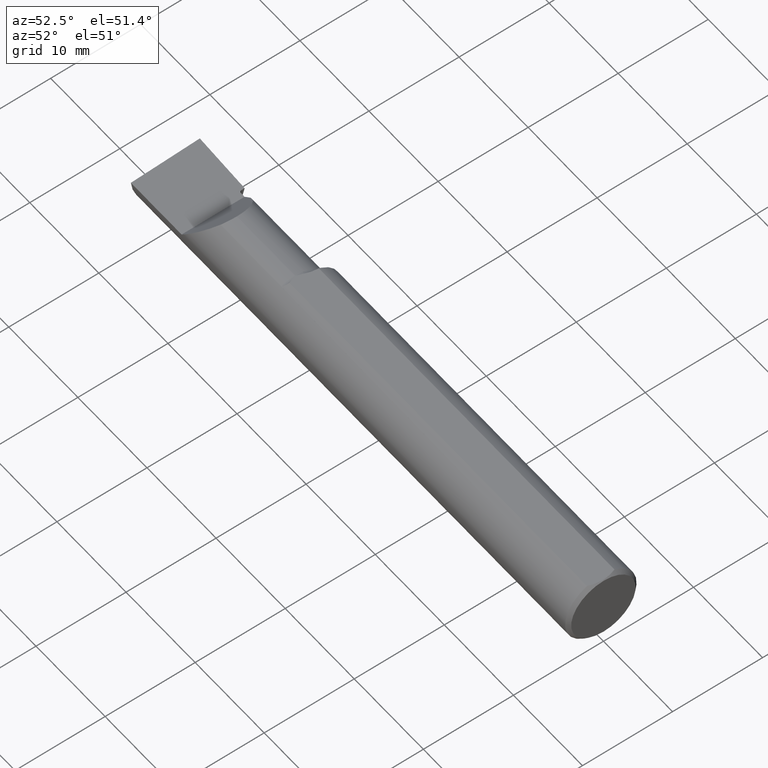
[diagram: clean part render]
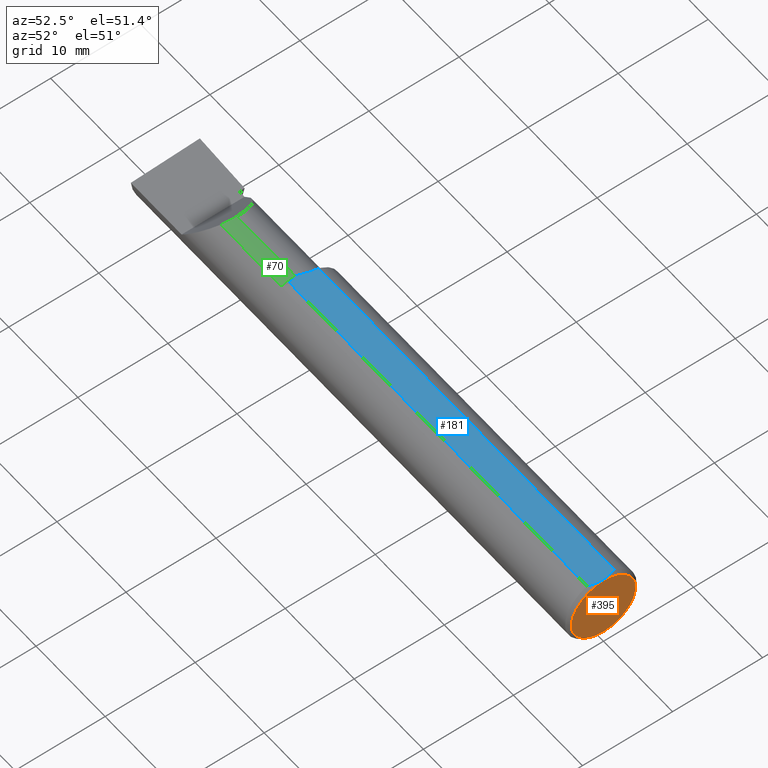
[diagram: same view with three faces highlighted in distinct colors, each labeled with its STEP entity id]
A machine part, auxiliary view with three faces highlighted in distinct colors.
Their STEP definitions:

[orange] entity #395 — the highlighted planar face has unit normal (-1, -0, 0).
#3 = CARTESIAN_POINT ( 'NONE',  ( -4.695363739110452099E-17, 4.170320745720392440E-32, 0.1411000000000002530 ) ) ;
#20 = AXIS2_PLACEMENT_3D ( 'NONE', #137, #357, #582 ) ;
#39 = CARTESIAN_POINT ( 'NONE',  ( -9.678837909573454915E-17, 0.2776584335525523750, -0.1560999999999999888 ) ) ;
#65 = VERTEX_POINT ( 'NONE', #3 ) ;
#106 = CARTESIAN_POINT ( 'NONE',  ( -4.695363739110451482E-17, -2.459287858768264152E-17, 0.000000000000000000 ) ) ;
#126 = EDGE_CURVE ( 'NONE', #65, #187, #516, .T. ) ;
#137 = CARTESIAN_POINT ( 'NONE',  ( -4.695363739110451482E-17, -2.459287858768264152E-17, 0.000000000000000000 ) ) ;
#146 = EDGE_CURVE ( 'NONE', #187, #65, #420, .T. ) ;
#187 = VERTEX_POINT ( 'NONE', #594 ) ;
#214 = DIRECTION ( 'NONE',  ( -1.000000000000000000, -1.742939658942782065E-16, 0.000000000000000000 ) ) ;
#235 = DIRECTION ( 'NONE',  ( 1.742939658942782065E-16, -1.000000000000000000, 0.000000000000000000 ) ) ;
#263 = FACE_OUTER_BOUND ( 'NONE', #706, .T. ) ;
#344 = DIRECTION ( 'NONE',  ( 1.000000000000000000, 1.742939658942782065E-16, 0.000000000000000000 ) ) ;
#349 = AXIS2_PLACEMENT_3D ( 'NONE', #106, #344, #235 ) ;
#357 = DIRECTION ( 'NONE',  ( 1.000000000000000000, 1.742939658942782065E-16, 0.000000000000000000 ) ) ;
#395 = ADVANCED_FACE ( 'NONE', ( #263 ), #497, .F. ) ;
#420 = CIRCLE ( 'NONE', #20, 0.1411000000000002530 ) ;
#447 = ORIENTED_EDGE ( 'NONE', *, *, #126, .T. ) ;
#497 = PLANE ( 'NONE',  #601 ) ;
#501 = ORIENTED_EDGE ( 'NONE', *, *, #146, .T. ) ;
#516 = CIRCLE ( 'NONE', #349, 0.1411000000000002530 ) ;
#582 = DIRECTION ( 'NONE',  ( 1.742939658942782065E-16, -1.000000000000000000, 0.000000000000000000 ) ) ;
#594 = CARTESIAN_POINT ( 'NONE',  ( -4.695363739110452099E-17, 1.819825143532972019E-17, -0.1411000000000002530 ) ) ;
#601 = AXIS2_PLACEMENT_3D ( 'NONE', #39, #214, #721 ) ;
#706 = EDGE_LOOP ( 'NONE', ( #447, #501 ) ) ;
#721 = DIRECTION ( 'NONE',  ( 1.742939658942782065E-16, -1.000000000000000000, 0.000000000000000000 ) ) ;

[blue] entity #181 — the highlighted planar face has unit normal (0, 0, 1).
#16 = CARTESIAN_POINT ( 'NONE',  ( -0.003000000000000204760, 6.421145895685612357E-21, 0.1440999999999999504 ) ) ;
#25 = DIRECTION ( 'NONE',  ( 0.000000000000000000, 0.000000000000000000, 1.000000000000000000 ) ) ;
#43 = EDGE_CURVE ( 'NONE', #142, #148, #119, .T. ) ;
#46 = LINE ( 'NONE', #679, #307 ) ;
#52 = CARTESIAN_POINT ( 'NONE',  ( -1.719201185154609846, -0.03693468910894936313, 0.1440999999999999226 ) ) ;
#57 = CARTESIAN_POINT ( 'NONE',  ( -0.008307085287356189701, 0.04068523568973313881, 0.1441000000000000059 ) ) ;
#119 = B_SPLINE_CURVE_WITH_KNOTS ( 'NONE', 3,
 ( #635, #397, #57, #452, #677, #571 ),
 .UNSPECIFIED., .F., .F.,
 ( 4, 2, 4 ),
 ( 0.003862504283746397583, 0.004641553971935389461, 0.005420603660124381773 ),
 .UNSPECIFIED. ) ;
#127 = VERTEX_POINT ( 'NONE', #467 ) ;
#128 = CARTESIAN_POINT ( 'NONE',  ( -0.008316884378888314902, -0.04071872938164906863, 0.1440999999999999226 ) ) ;
#134 = CARTESIAN_POINT ( 'NONE',  ( -0.01500000000000024925, -0.06001999666777732556, 0.1440999999999999781 ) ) ;
#138 = ORIENTED_EDGE ( 'NONE', *, *, #43, .F. ) ;
#142 = VERTEX_POINT ( 'NONE', #419 ) ;
#148 = VERTEX_POINT ( 'NONE', #16 ) ;
#160 = LINE ( 'NONE', #285, #437 ) ;
#181 = ADVANCED_FACE ( 'NONE', ( #368 ), #423, .T. ) ;
#224 = CARTESIAN_POINT ( 'NONE',  ( -1.721844053232386873, -0.02136326841098498339, 0.1440999999999999781 ) ) ;
#229 = CARTESIAN_POINT ( 'NONE',  ( -1.718418672230967115, -0.01083899323585547220, 0.1440999999999999504 ) ) ;
#234 = CARTESIAN_POINT ( 'NONE',  ( -1.721036826405247133, -0.03107590170041930888, 0.1441000000000000059 ) ) ;
#237 = B_SPLINE_CURVE_WITH_KNOTS ( 'NONE', 3,
 ( #715, #658, #267, #500, #724, #524, #229, #455, #224, #619 ),
 .UNSPECIFIED., .F., .F.,
 ( 4, 2, 2, 2, 4 ),
 ( 0.01301670781631844402, 0.01412932456335744096, 0.01468563293687693942, 0.01496378712363669213, 0.01524194131039644483 ),
 .UNSPECIFIED. ) ;
#241 = B_SPLINE_CURVE_WITH_KNOTS ( 'NONE', 3,
 ( #353, #474, #593, #128, #576, #363 ),
 .UNSPECIFIED., .F., .F.,
 ( 4, 2, 4 ),
 ( 0.005420603660124381773, 0.006200393792043773673, 0.006980183923963165574 ),
 .UNSPECIFIED. ) ;
#246 = ORIENTED_EDGE ( 'NONE', *, *, #564, .F. ) ;
#248 = CARTESIAN_POINT ( 'NONE',  ( -1.710843495424060334, -0.06001999666777307202, 0.1440999999999999504 ) ) ;
#267 = CARTESIAN_POINT ( 'NONE',  ( -1.704082834115631773, 0.03088512097720286578, 0.1440999999999999504 ) ) ;
#268 = VERTEX_POINT ( 'NONE', #488 ) ;
#277 = CARTESIAN_POINT ( 'NONE',  ( -1.721844053232375549, -0.02804753169359755494, 0.1440999999999999781 ) ) ;
#285 = CARTESIAN_POINT ( 'NONE',  ( -2.500000000000000000, 0.06001999666777736719, 0.1440999999999999504 ) ) ;
#295 = CARTESIAN_POINT ( 'NONE',  ( -1.721844053232376881, -0.02500000000003146580, 0.1440999999999999504 ) ) ;
#306 = VERTEX_POINT ( 'NONE', #134 ) ;
#307 = VECTOR ( 'NONE', #570, 39.37007874015748143 ) ;
#327 = ORIENTED_EDGE ( 'NONE', *, *, #583, .F. ) ;
#332 = ORIENTED_EDGE ( 'NONE', *, *, #450, .T. ) ;
#353 = CARTESIAN_POINT ( 'NONE',  ( -0.003000000000000204760, 6.421145895685612357E-21, 0.1440999999999999504 ) ) ;
#363 = CARTESIAN_POINT ( 'NONE',  ( -0.01500000000000024925, -0.06001999666777732556, 0.1440999999999999781 ) ) ;
#368 = FACE_OUTER_BOUND ( 'NONE', #722, .T. ) ;
#397 = CARTESIAN_POINT ( 'NONE',  ( -0.01132650618349836762, 0.05046597439866586793, 0.1440999999999999781 ) ) ;
#419 = CARTESIAN_POINT ( 'NONE',  ( -0.01500000000000023884, 0.06001999666777732556, 0.1440999999999999504 ) ) ;
#423 = PLANE ( 'NONE',  #484 ) ;
#437 = VECTOR ( 'NONE', #566, 39.37007874015748143 ) ;
#438 = B_SPLINE_CURVE_WITH_KNOTS ( 'NONE', 3,
 ( #295, #277, #234, #52, #617, #511, #734, #676 ),
 .UNSPECIFIED., .F., .F.,
 ( 4, 2, 2, 4 ),
 ( 0.0006785821176393350704, 0.0009116715494801459199, 0.001144760981320956661, 0.001610939845002578360 ),
 .UNSPECIFIED. ) ;
#450 = EDGE_CURVE ( 'NONE', #268, #127, #237, .T. ) ;
#452 = CARTESIAN_POINT ( 'NONE',  ( -0.004112937275917732775, 0.02048434576366622156, 0.1440999999999999226 ) ) ;
#455 = CARTESIAN_POINT ( 'NONE',  ( -1.720724021719190366, -0.01776615298045616104, 0.1440999999999999504 ) ) ;
#467 = CARTESIAN_POINT ( 'NONE',  ( -1.721844053232376881, -0.02500000000003146580, 0.1440999999999999504 ) ) ;
#470 = DIRECTION ( 'NONE',  ( 1.000000000000000000, 0.000000000000000000, -0.000000000000000000 ) ) ;
#474 = CARTESIAN_POINT ( 'NONE',  ( -0.003000000000000203892, -0.01021764673483457724, 0.1440999999999999781 ) ) ;
#477 = ORIENTED_EDGE ( 'NONE', *, *, #682, .F. ) ;
#484 = AXIS2_PLACEMENT_3D ( 'NONE', #590, #25, #470 ) ;
#488 = CARTESIAN_POINT ( 'NONE',  ( -1.700050504025077069, 0.06001999666777736026, 0.1440999999999999504 ) ) ;
#500 = CARTESIAN_POINT ( 'NONE',  ( -1.710816084744943399, 0.009840729273038955477, 0.1440999999999999504 ) ) ;
#511 = CARTESIAN_POINT ( 'NONE',  ( -1.714985600317322723, -0.04846509284843828619, 0.1440999999999999781 ) ) ;
#524 = CARTESIAN_POINT ( 'NONE',  ( -1.717139718007817617, -0.007416860360634727756, 0.1440999999999999504 ) ) ;
#553 = EDGE_CURVE ( 'NONE', #127, #655, #438, .T. ) ;
#564 = EDGE_CURVE ( 'NONE', #268, #142, #160, .T. ) ;
#566 = DIRECTION ( 'NONE',  ( 1.000000000000000000, -0.000000000000000000, -0.000000000000000000 ) ) ;
#570 = DIRECTION ( 'NONE',  ( -1.000000000000000000, 0.000000000000000000, 0.000000000000000000 ) ) ;
#571 = CARTESIAN_POINT ( 'NONE',  ( -0.003000000000000204760, 6.421145895685612357E-21, 0.1440999999999999504 ) ) ;
#576 = CARTESIAN_POINT ( 'NONE',  ( -0.01133355301893011931, -0.05048430180739575668, 0.1440999999999999781 ) ) ;
#583 = EDGE_CURVE ( 'NONE', #306, #655, #46, .T. ) ;
#590 = CARTESIAN_POINT ( 'NONE',  ( 2.500000000000000000, 0.06250000000000000000, 0.1440999999999999504 ) ) ;
#593 = CARTESIAN_POINT ( 'NONE',  ( -0.004121137220901559609, -0.02053748477038522605, 0.1441000000000000059 ) ) ;
#617 = CARTESIAN_POINT ( 'NONE',  ( -1.718148277183320971, -0.03981762987256246000, 0.1440999999999999504 ) ) ;
#619 = CARTESIAN_POINT ( 'NONE',  ( -1.721844053232376881, -0.02500000000003146580, 0.1440999999999999504 ) ) ;
#635 = CARTESIAN_POINT ( 'NONE',  ( -0.01500000000000023884, 0.06001999666777732556, 0.1440999999999999504 ) ) ;
#655 = VERTEX_POINT ( 'NONE', #248 ) ;
#658 = CARTESIAN_POINT ( 'NONE',  ( -1.700532541532473685, 0.04511886254873734986, 0.1440999999999999781 ) ) ;
#676 = CARTESIAN_POINT ( 'NONE',  ( -1.710843495424060334, -0.06001999666777307202, 0.1440999999999999504 ) ) ;
#677 = CARTESIAN_POINT ( 'NONE',  ( -0.003000000000000205194, 0.01020794464685660825, 0.1440999999999999781 ) ) ;
#679 = CARTESIAN_POINT ( 'NONE',  ( -2.500000000000000000, -0.06001999666777736719, 0.1440999999999999504 ) ) ;
#682 = EDGE_CURVE ( 'NONE', #148, #306, #241, .T. ) ;
#689 = ORIENTED_EDGE ( 'NONE', *, *, #553, .T. ) ;
#715 = CARTESIAN_POINT ( 'NONE',  ( -1.700050504025077069, 0.06001999666777736026, 0.1440999999999999504 ) ) ;
#722 = EDGE_LOOP ( 'NONE', ( #246, #332, #689, #327, #477, #138 ) ) ;
#724 = CARTESIAN_POINT ( 'NONE',  ( -1.713353959584565933, 0.002866311517174573859, 0.1440999999999999504 ) ) ;
#734 = CARTESIAN_POINT ( 'NONE',  ( -1.712837095251397823, -0.05422015848554274237, 0.1440999999999999781 ) ) ;

[green] entity #70 — the highlighted cylindrical surface (partial cylindrical patch) has radius 3.6551 mm, axis along (1, -0, -0).
#11 = CARTESIAN_POINT ( 'NONE',  ( -2.069528853764518228, -0.08569999999999516893, 0.1304711462354827267 ) ) ;
#17 = ORIENTED_EDGE ( 'NONE', *, *, #600, .F. ) ;
#53 = CARTESIAN_POINT ( 'NONE',  ( 0.000000000000000000, -0.02500000000000000486, 0.000000000000000000 ) ) ;
#56 = CARTESIAN_POINT ( 'NONE',  ( 0.000000000000000000, -0.02500000000000000486, 0.1439000000000001389 ) ) ;
#70 = ADVANCED_FACE ( 'NONE', ( #578 ), #681, .T. ) ;
#73 = CARTESIAN_POINT ( 'NONE',  ( -2.056100000000001149, -0.04605394310600462171, 0.1439000000000001389 ) ) ;
#107 = VECTOR ( 'NONE', #255, 39.37007874015748143 ) ;
#114 = DIRECTION ( 'NONE',  ( 0.000000000000000000, 0.000000000000000000, 1.000000000000000000 ) ) ;
#159 = EDGE_CURVE ( 'NONE', #427, #372, #359, .T. ) ;
#179 = DIRECTION ( 'NONE',  ( 1.000000000000000000, -0.000000000000000000, -0.000000000000000000 ) ) ;
#192 = CARTESIAN_POINT ( 'NONE',  ( -1.724999999999999867, -0.02500000000000000486, 0.000000000000000000 ) ) ;
#202 = EDGE_CURVE ( 'NONE', #733, #433, #541, .T. ) ;
#207 = CARTESIAN_POINT ( 'NONE',  ( -1.724999999999999867, -0.08569999999999887430, 0.1304711462354806450 ) ) ;
#216 = CARTESIAN_POINT ( 'NONE',  ( -1.724999999999999867, -0.02500000000000000486, 0.1439000000000001389 ) ) ;
#253 = DIRECTION ( 'NONE',  ( 0.000000000000000000, 0.000000000000000000, 1.000000000000000000 ) ) ;
#255 = DIRECTION ( 'NONE',  ( 1.000000000000000000, -0.000000000000000000, -0.000000000000000000 ) ) ;
#256 = DIRECTION ( 'NONE',  ( -1.000000000000000000, 0.000000000000000000, 0.000000000000000000 ) ) ;
#259 = CARTESIAN_POINT ( 'NONE',  ( -2.056100000000001149, -0.02500000000000000486, 0.1439000000000001389 ) ) ;
#318 = CARTESIAN_POINT ( 'NONE',  ( -2.069528853764518228, -0.08569999999999516893, 0.1304711462354827267 ) ) ;
#324 = EDGE_CURVE ( 'NONE', #733, #372, #380, .T. ) ;
#359 =( BOUNDED_CURVE ( )  B_SPLINE_CURVE ( 3, ( #532, #73, #712, #11 ),
 .UNSPECIFIED., .F., .F. ) 
 B_SPLINE_CURVE_WITH_KNOTS ( ( 4, 4 ),
 ( 0.000000000000000000, 0.4354524910905208102 ),
 .UNSPECIFIED. ) 
 CURVE ( )  GEOMETRIC_REPRESENTATION_ITEM ( )  RATIONAL_B_SPLINE_CURVE ( ( 1.000000000000000000, 0.9842607512044769802, 0.9842607512044769802, 1.000000000000000000 ) ) 
 REPRESENTATION_ITEM ( '' )  );
#365 = ORIENTED_EDGE ( 'NONE', *, *, #324, .F. ) ;
#369 = EDGE_LOOP ( 'NONE', ( #17, #747, #365, #606 ) ) ;
#372 = VERTEX_POINT ( 'NONE', #318 ) ;
#380 = LINE ( 'NONE', #548, #694 ) ;
#427 = VERTEX_POINT ( 'NONE', #259 ) ;
#433 = VERTEX_POINT ( 'NONE', #216 ) ;
#532 = CARTESIAN_POINT ( 'NONE',  ( -2.056100000000001149, -0.02500000000000000486, 0.1439000000000001389 ) ) ;
#541 = CIRCLE ( 'NONE', #608, 0.1439000000000001389 ) ;
#548 = CARTESIAN_POINT ( 'NONE',  ( -1.972499999999999698, -0.08569999999999904083, 0.1304711462354805618 ) ) ;
#578 = FACE_OUTER_BOUND ( 'NONE', #369, .T. ) ;
#600 = EDGE_CURVE ( 'NONE', #427, #433, #628, .T. ) ;
#606 = ORIENTED_EDGE ( 'NONE', *, *, #202, .T. ) ;
#608 = AXIS2_PLACEMENT_3D ( 'NONE', #192, #256, #253 ) ;
#628 = LINE ( 'NONE', #56, #107 ) ;
#666 = DIRECTION ( 'NONE',  ( -1.000000000000000000, 0.000000000000000000, 0.000000000000000000 ) ) ;
#681 = CYLINDRICAL_SURFACE ( 'NONE', #730, 0.1439000000000001389 ) ;
#694 = VECTOR ( 'NONE', #666, 39.37007874015748143 ) ;
#712 = CARTESIAN_POINT ( 'NONE',  ( -2.060647864559971509, -0.06661082633900096417, 0.1393521354400298062 ) ) ;
#730 = AXIS2_PLACEMENT_3D ( 'NONE', #53, #179, #114 ) ;
#733 = VERTEX_POINT ( 'NONE', #207 ) ;
#747 = ORIENTED_EDGE ( 'NONE', *, *, #159, .T. ) ;